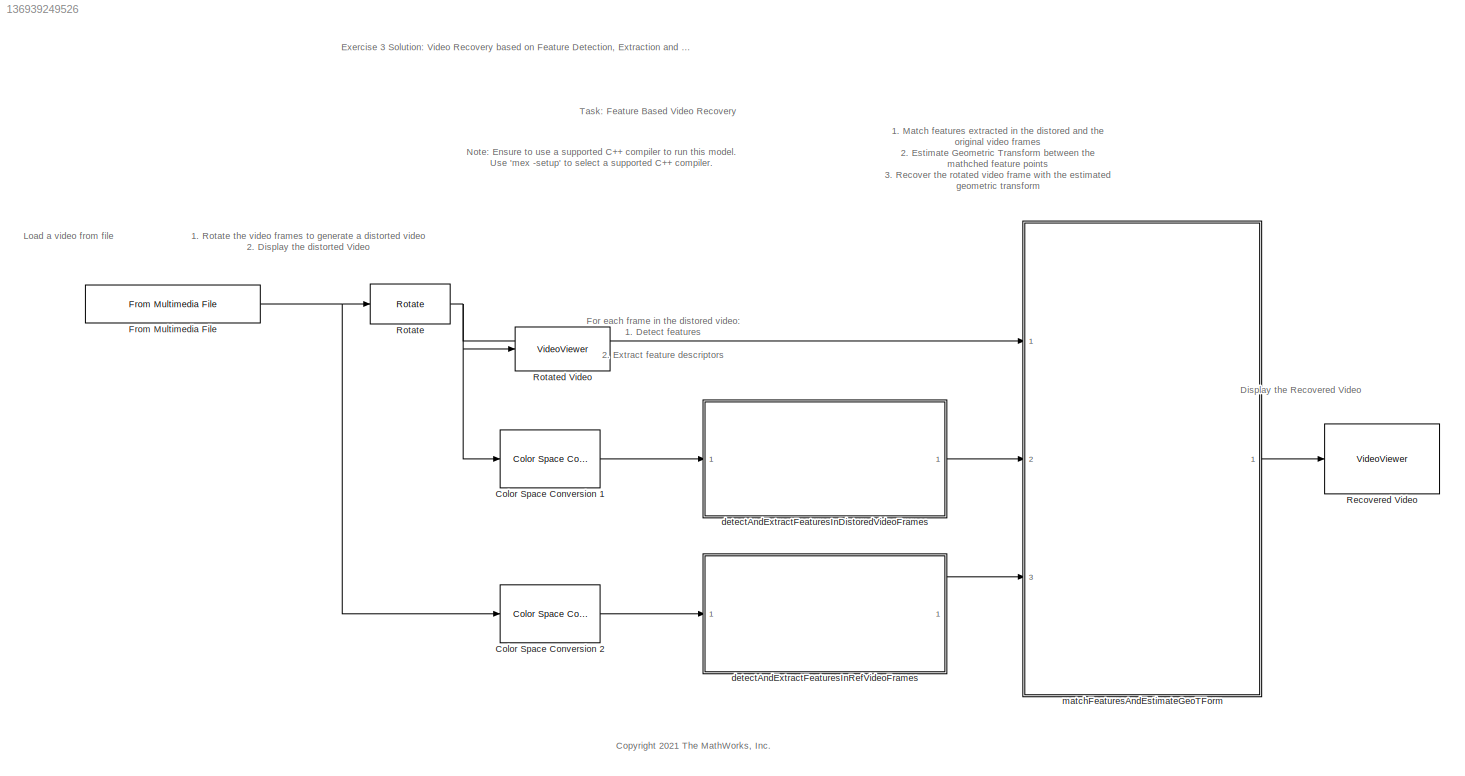
MODEL slx_136939249526
KIND model
CONFIG AbsTol = auto
CONFIG EnableMultiTasking = off
CONFIG FixedStep = auto
CONFIG InitFcn = initVars
CONFIG MaxStep = auto
CONFIG MinStep = auto
CONFIG RelTol = 1e-3
CONFIG SampleTimeConstraint = Unconstrained
CONFIG SolverName = VariableStepAuto
CONFIG StartTime = 0.0
CONFIG StopTime = 10
BLOCK [Reference] Color Space Conversion 1  REF=visionconversions/Color Space
 Conversion
  Ports = [1, 1]
  SourceBlock = visionconversions/Color Space\n Conversion
  SourceProductBaseCode = VP
  SourceType = Color Space Conversion
BLOCK [Reference] Color Space Conversion 2  REF=visionconversions/Color Space
 Conversion
  Ports = [1, 1]
  SourceBlock = visionconversions/Color Space\n Conversion
  SourceProductBaseCode = VP
  SourceType = Color Space Conversion
BLOCK [Reference] From Multimedia File  REF=dspvision/From Multimedia File
  Ports = [0, 1]
  SourceBlock = dspvision/From Multimedia File
  SourceProductBaseCode = DS,HW,VP
  SourceType = From Multimedia File
BLOCK [VideoViewer] Recovered Video
  FigPos = [587 619 691 435]
  Ports = [1]
  ScopeSpecificationString = vipscopes.VideoViewerScopeCfg('CurrentConfiguration', extmgr.ConfigurationSet(extmgr.Configuration('Core','General UI',true),extmgr.Configuration('Core','Source UI',true),extmgr.Configuration('Sources','WiredSimulink',true),extmgr.Configuration('Visuals','Video',true),extmgr.Configuration('Tools','Image Navigation Tools',true,'Magnification',0.67),extmgr.Configuration('Tools','Image Tool',true),ex...<+96ch>
  colormapValue = gray(256)
BLOCK [Reference] Rotate  REF=visiongeotforms/Rotate
  Ports = [1, 1]
  SourceBlock = visiongeotforms/Rotate
  SourceProductBaseCode = VP
  SourceType = Rotate
BLOCK [VideoViewer] Rotated Video
  FigPos = [2 677 711 568]
  Ports = [1]
  ScopeSpecificationString = vipscopes.VideoViewerScopeCfg('CurrentConfiguration', extmgr.ConfigurationSet(extmgr.Configuration('Core','General UI',true),extmgr.Configuration('Core','Source UI',true),extmgr.Configuration('Sources','WiredSimulink',true),extmgr.Configuration('Visuals','Video',true),extmgr.Configuration('Tools','Image Navigation Tools',true,'Magnification',0.67),extmgr.Configuration('Tools','Image Tool',true),ex...<+93ch>
  colormapValue = gray(256)
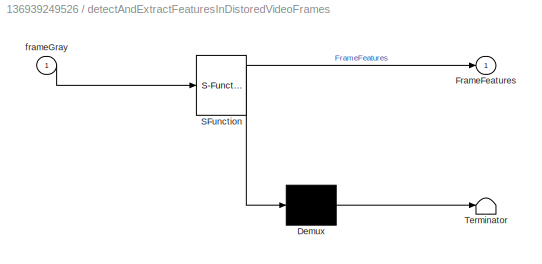
BLOCK [SubSystem] detectAndExtractFeaturesInDistoredVideoFrames
  ErrorFcn = Stateflow.Translate.translate
  NameLocation = top
  PermitHierarchicalResolution = ExplicitOnly
  Ports = [1, 1]
  RequestExecContextInheritance = off
  SFBlockType = MATLAB Function
  TreatAsAtomicUnit = on
BLOCK [Demux] detectAndExtractFeaturesInDistoredVideoFrames/ Demux 
  Outputs = 1
  Ports = [1, 1]
BLOCK [S-Function] detectAndExtractFeaturesInDistoredVideoFrames/ SFunction 
  EnableBusSupport = on
  FunctionName = sf_sfun
  Parameters = FrameFeaturesTemp
  PortCounts = [1 2]
  Ports = [1, 2]
  SFcnIsStateOwnerBlock = off
  SFunctionDeploymentMode = off
  Tag = Stateflow S-Function 1
BLOCK [Terminator] detectAndExtractFeaturesInDistoredVideoFrames/ Terminator 
BLOCK [Outport] detectAndExtractFeaturesInDistoredVideoFrames/FrameFeatures
BLOCK [Inport] detectAndExtractFeaturesInDistoredVideoFrames/frameGray
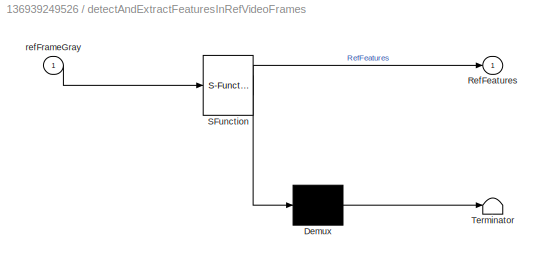
BLOCK [SubSystem] detectAndExtractFeaturesInRefVideoFrames
  ErrorFcn = Stateflow.Translate.translate
  NameLocation = top
  PermitHierarchicalResolution = ExplicitOnly
  Ports = [1, 1]
  RequestExecContextInheritance = off
  SFBlockType = MATLAB Function
  TreatAsAtomicUnit = on
BLOCK [Demux] detectAndExtractFeaturesInRefVideoFrames/ Demux 
  Outputs = 1
  Ports = [1, 1]
BLOCK [S-Function] detectAndExtractFeaturesInRefVideoFrames/ SFunction 
  EnableBusSupport = on
  FunctionName = sf_sfun
  Parameters = RefFeaturesTemp
  PortCounts = [1 2]
  Ports = [1, 2]
  SFcnIsStateOwnerBlock = off
  SFunctionDeploymentMode = off
  Tag = Stateflow S-Function 4
BLOCK [Terminator] detectAndExtractFeaturesInRefVideoFrames/ Terminator 
BLOCK [Outport] detectAndExtractFeaturesInRefVideoFrames/RefFeatures
BLOCK [Inport] detectAndExtractFeaturesInRefVideoFrames/refFrameGray
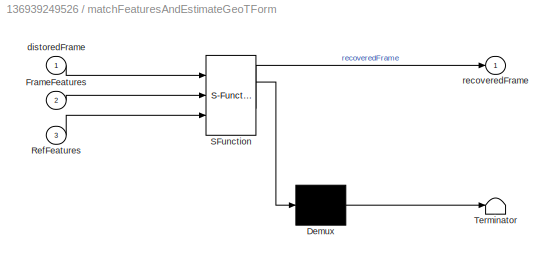
BLOCK [SubSystem] matchFeaturesAndEstimateGeoTForm
  ErrorFcn = Stateflow.Translate.translate
  PermitHierarchicalResolution = ExplicitOnly
  Ports = [3, 1]
  RequestExecContextInheritance = off
  SFBlockType = MATLAB Function
  TreatAsAtomicUnit = on
BLOCK [Demux] matchFeaturesAndEstimateGeoTForm/ Demux 
  Outputs = 1
  Ports = [1, 1]
BLOCK [S-Function] matchFeaturesAndEstimateGeoTForm/ SFunction 
  EnableBusSupport = on
  FunctionName = sf_sfun
  PortCounts = [3 2]
  Ports = [3, 2]
  SFcnIsStateOwnerBlock = off
  SFunctionDeploymentMode = off
  Tag = Stateflow S-Function 3
BLOCK [Terminator] matchFeaturesAndEstimateGeoTForm/ Terminator 
BLOCK [Inport] matchFeaturesAndEstimateGeoTForm/FrameFeatures
  Port = 2
BLOCK [Inport] matchFeaturesAndEstimateGeoTForm/RefFeatures
  Port = 3
BLOCK [Inport] matchFeaturesAndEstimateGeoTForm/distoredFrame
BLOCK [Outport] matchFeaturesAndEstimateGeoTForm/recoveredFrame
ANNOTATION (root): For each frame in the original video 1. Detect features 2. Extract feature descriptors Note: use the same methods as in the distored video
ANNOTATION (root): Convert color space from RGB to intensity
ANNOTATION (root): 1. Match features extracted in the distored and the original video frames 2. Estimate Geometric Transform between the mathched feature points 3. Recover the rotated video frame with the estimated geometric transform
ANNOTATION (root): 1. Rotate the video frames to generate a distorted video 2. Display the distorted Video
ANNOTATION (root): Exercise 3 Solution: Video Recovery based on Feature Detection, Extraction and Matching using Simulink ®
ANNOTATION (root): Task: Feature Based Video Recovery
ANNOTATION (root): <copyright redacted>
ANNOTATION (root): Display the Recovered Video
ANNOTATION (root): For each frame in the distored video: 1. Detect features 2. Extract feature descriptors
ANNOTATION (root): Load a video from file
ANNOTATION (root): Note: Ensure to use a supported C++ compiler to run this model. Use 'mex -setup' to select a supported C++ compiler.
LINE Color Space Conversion 1:1 -> detectAndExtractFeaturesInDistoredVideoFrames:1
LINE Color Space Conversion 2:1 -> detectAndExtractFeaturesInRefVideoFrames:1
NET From Multimedia File:1 -> Color Space Conversion 2:1, Rotate:1
NET Rotate:1 -> Color Space Conversion 1:1, Rotated Video:1, matchFeaturesAndEstimateGeoTForm:1
LINE detectAndExtractFeaturesInDistoredVideoFrames:1 -> matchFeaturesAndEstimateGeoTForm:2
LINE detectAndExtractFeaturesInRefVideoFrames:1 -> matchFeaturesAndEstimateGeoTForm:3
LINE matchFeaturesAndEstimateGeoTForm:1 -> Recovered Video:1
note: NET lines group one-source signal fan-out (src -> all destinations, sorted); 1:1 wires keep LINE
CHART detectAndExtractFeaturesInDistoredVideoFrames states=1 transitions=1
  STATE_LABEL 'eML_blk_kernel()'
  STATE_LABEL 'SCRIPT:\nfunction FrameFeatures = detectAndExtractFeatures(frameGray, FrameFeaturesTemp) %#codegen\n    %% Please implement this section    \n     % -- Detect feature points in frameGray using the SURF method  \n     detectedPoints = detectSURFFeatures(frameGray);\n    \n     % -- Extract feature descriptors (featureDescriptors) of the detected feature points (points)\n     %    with auto selected method...<+520ch>'
CHART matchFeaturesAndEstimateGeoTForm states=1 transitions=1
  STATE_LABEL 'eML_blk_kernel()'
  STATE_LABEL 'SCRIPT:\nfunction recoveredFrame  = matchFeaturesAndEstimateGeoTForm(distoredFrame,FrameFeatures,RefFeatures)  %#codegen\n    %% Get descriptors of the matched features \n    refFeatureDescriptors = RefFeatures.descriptors(1:RefFeatures.count,:);\n    frameFeatureDescriptors = FrameFeatures.descriptors(1:FrameFeatures.count,:);\n    \n    %% Please implement this section\n     % -- Match Features based o...<+758ch>'
CHART detectAndExtractFeaturesInRefVideoFrames states=1 transitions=1
  STATE_LABEL 'eML_blk_kernel()'
  STATE_LABEL 'SCRIPT:\nfunction RefFeatures = detectAndExtractRefFeatures(refFrameGray, RefFeaturesTemp) %#codegen\n   %% Please implement this section \n    % -- Detect feature points in frameGray using the SURF method  \n    detectedPoints = detectSURFFeatures(refFrameGray);\n    \n    % -- Extract feature descriptors (featureDescriptors) of the detected feature points (points)\n    %    with auto selected method\n  ...<+505ch>'
CHART  states=0 transitions=0
CHART  states=0 transitions=0
CHART  states=0 transitions=0
